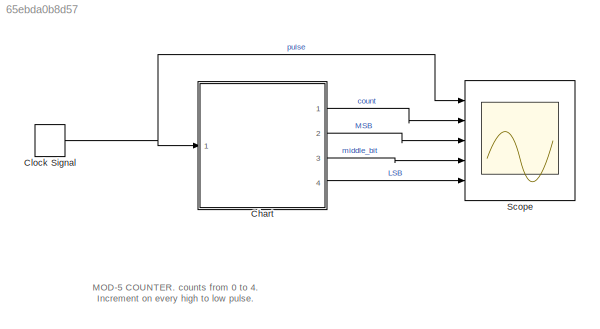
MODEL slx_65ebda0b8d57
KIND model
CONFIG AbsTol = auto
CONFIG EnableMultiTasking = off
CONFIG FixedStep = auto
CONFIG MaxStep = auto
CONFIG MinStep = auto
CONFIG RelTol = 1e-3
CONFIG SampleTimeConstraint = Unconstrained
CONFIG Solver = FixedStepAuto
CONFIG SolverName = FixedStepAuto
CONFIG StartTime = 0.0
CONFIG StopTime = 10
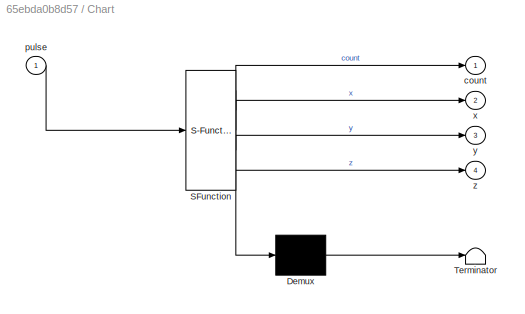
BLOCK [SubSystem] Chart
  ErrorFcn = Stateflow.Translate.translate
  PermitHierarchicalResolution = ExplicitOnly
  Ports = [1, 4]
  RequestExecContextInheritance = off
  SFBlockType = Chart
  TreatAsAtomicUnit = on
BLOCK [Demux] Chart/ Demux 
  Outputs = 1
  Ports = [1, 1]
BLOCK [S-Function] Chart/ SFunction 
  EnableBusSupport = on
  FunctionName = sf_sfun
  PortCounts = [1 5]
  Ports = [1, 5]
  SFcnIsStateOwnerBlock = off
  SFunctionDeploymentMode = off
  Tag = Stateflow S-Function 3
BLOCK [Terminator] Chart/ Terminator 
BLOCK [Outport] Chart/count
BLOCK [Inport] Chart/pulse
BLOCK [Outport] Chart/x
  Port = 2
BLOCK [Outport] Chart/y
  Port = 3
BLOCK [Outport] Chart/z
  Port = 4
BLOCK [DiscretePulseGenerator] Clock Signal
  Period = 1
  PhaseDelay = 0.5
  Ports = [0, 1]
  PulseType = Time based
  PulseWidth = 50
BLOCK [Scope] Scope
  Floating = off
  NumInputPorts = 5
  Ports = [5]
  ScopeSpecificationString = Simulink.scopes.TimeScopeBlockCfg('CurrentConfiguration', extmgr.ConfigurationSet(extmgr.Configuration('Core','General UI',true),extmgr.Configuration('Core','Source UI',true),extmgr.Configuration('Sources','WiredSimulink',true),extmgr.Configuration('Visuals','Time Domain',true,'SerializedDisplays',{struct('MinYLimReal','-0.125','MaxYLimReal','1.125','YLabelReal','','MinYLimMag','0.00000','MaxYLimM...<+4029ch>
ANNOTATION (root): MOD-5 COUNTER. counts from 0 to 4. Increment on every high to low pulse.
LINE Chart:1 -> Scope:2
LINE Chart:2 -> Scope:3
LINE Chart:3 -> Scope:4
LINE Chart:4 -> Scope:5
NET Clock Signal:1 -> Chart:1, Scope:1
note: NET lines group one-source signal fan-out (src -> all destinations, sorted); 1:1 wires keep LINE
CHART Chart states=5 transitions=10
  STATE_LABEL 'Binval_000_\nduring:\nx = 0;\ny = 0;\nz = 0;\ncount = z + y*2 + x * 4;\n'
  STATE_LABEL 'Binval_004\nduring:\nx = 1;\ny = 0;\nz = 0;\ncount = z + y*2 + x * 4;'
  STATE_LABEL 'Binval_001\nduring:\nx = 0;\ny = 0;\nz = 1;\ncount = z + y*2 + x * 4;'
  STATE_LABEL 'Binval_003\nduring:\nx = 0;\ny = 1;\nz = 1;\ncount = z + y*2 + x * 4;'
  STATE_LABEL 'Binval_002\nduring:\nx = 0;\ny = 1;\nz = 0;\ncount = z + y*2 + x * 4;'
CHART  states=0 transitions=0
